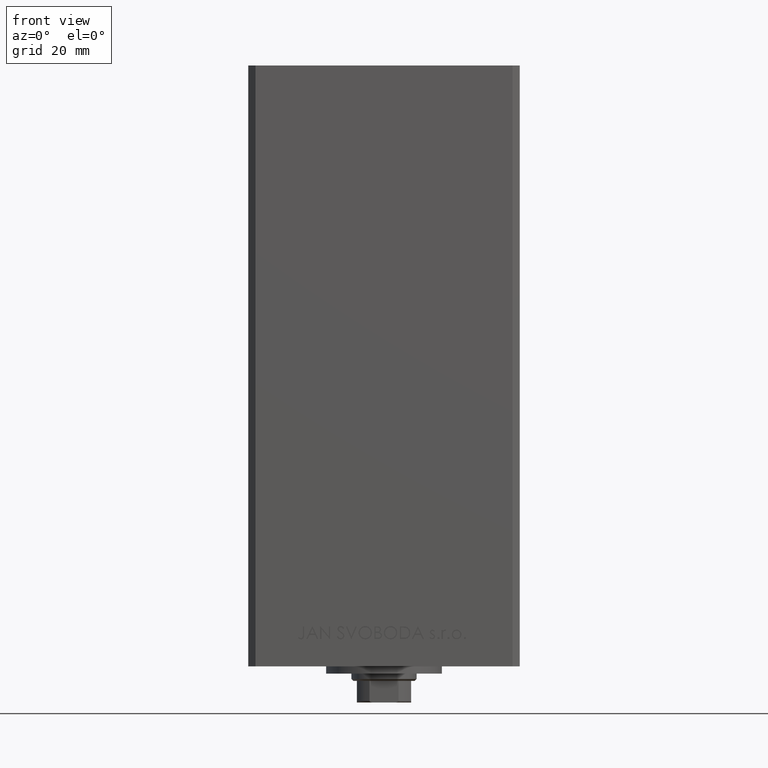
[diagram: clean part render]
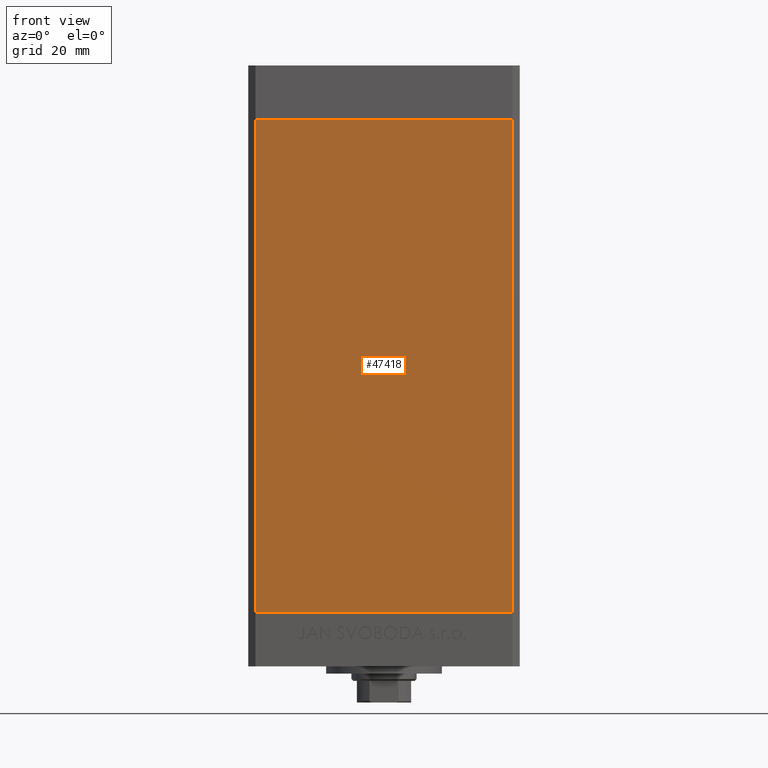
[diagram: same view with one face highlighted and labeled with its STEP entity id]
A machine part, front view. The second image highlights one B-rep face of the part: STEP entity #47418.
In plain terms, the highlighted planar face has unit normal (0, 1, 0).
Its self-contained STEP definition (entity closure, byte-faithful):
#481 = VERTEX_POINT ( 'NONE', #45219 ) ;
#1522 = EDGE_CURVE ( 'NONE', #22278, #9973, #34895, .T. ) ;
#2995 = VECTOR ( 'NONE', #31398, 1000.000000000000000 ) ;
#4451 = CARTESIAN_POINT ( 'NONE',  ( -35.49999999999999289, -32.50000000000000000, 136.0000000000000000 ) ) ;
#5362 = ORIENTED_EDGE ( 'NONE', *, *, #42387, .T. ) ;
#5832 = ORIENTED_EDGE ( 'NONE', *, *, #1522, .T. ) ;
#6244 = DIRECTION ( 'NONE',  ( -0.000000000000000000, -0.000000000000000000, -1.000000000000000000 ) ) ;
#8750 = CARTESIAN_POINT ( 'NONE',  ( -35.49999999999999289, -32.50000000000000000, 136.0000000000000000 ) ) ;
#9496 = CARTESIAN_POINT ( 'NONE',  ( 35.49999999999999289, -32.50000000000000000, 136.0000000000000000 ) ) ;
#9973 = VERTEX_POINT ( 'NONE', #17254 ) ;
#11839 = CARTESIAN_POINT ( 'NONE',  ( -35.49999999999999289, -32.50000000000000000, 0.000000000000000000 ) ) ;
#14940 = LINE ( 'NONE', #4451, #35216 ) ;
#16938 = CARTESIAN_POINT ( 'NONE',  ( -35.49999999999999289, -32.50000000000000000, 136.0000000000000000 ) ) ;
#17254 = CARTESIAN_POINT ( 'NONE',  ( 35.49999999999999289, -32.50000000000000000, 0.000000000000000000 ) ) ;
#17443 = DIRECTION ( 'NONE',  ( 1.000000000000000000, 0.000000000000000000, 0.000000000000000000 ) ) ;
#17677 = CARTESIAN_POINT ( 'NONE',  ( -35.49999999999999289, -32.50000000000000000, 136.0000000000000000 ) ) ;
#20438 = VECTOR ( 'NONE', #17443, 1000.000000000000000 ) ;
#20649 = VECTOR ( 'NONE', #6244, 1000.000000000000000 ) ;
#22278 = VERTEX_POINT ( 'NONE', #11839 ) ;
#24181 = LINE ( 'NONE', #16938, #20438 ) ;
#24988 = EDGE_CURVE ( 'NONE', #42193, #481, #24181, .T. ) ;
#27183 = ORIENTED_EDGE ( 'NONE', *, *, #24988, .F. ) ;
#30638 = AXIS2_PLACEMENT_3D ( 'NONE', #8750, #39396, #35658 ) ;
#30645 = EDGE_CURVE ( 'NONE', #481, #9973, #40143, .T. ) ;
#31398 = DIRECTION ( 'NONE',  ( 1.000000000000000000, 0.000000000000000000, 0.000000000000000000 ) ) ;
#34606 = DIRECTION ( 'NONE',  ( -0.000000000000000000, -0.000000000000000000, -1.000000000000000000 ) ) ;
#34895 = LINE ( 'NONE', #47101, #2995 ) ;
#35216 = VECTOR ( 'NONE', #34606, 1000.000000000000000 ) ;
#35658 = DIRECTION ( 'NONE',  ( 0.000000000000000000, -0.000000000000000000, 1.000000000000000000 ) ) ;
#37394 = EDGE_LOOP ( 'NONE', ( #5832, #44454, #27183, #5362 ) ) ;
#39396 = DIRECTION ( 'NONE',  ( 0.000000000000000000, 1.000000000000000000, 0.000000000000000000 ) ) ;
#40143 = LINE ( 'NONE', #9496, #20649 ) ;
#42193 = VERTEX_POINT ( 'NONE', #17677 ) ;
#42387 = EDGE_CURVE ( 'NONE', #42193, #22278, #14940, .T. ) ;
#42911 = PLANE ( 'NONE',  #30638 ) ;
#43149 = FACE_OUTER_BOUND ( 'NONE', #37394, .T. ) ;
#44454 = ORIENTED_EDGE ( 'NONE', *, *, #30645, .F. ) ;
#45219 = CARTESIAN_POINT ( 'NONE',  ( 35.49999999999999289, -32.50000000000000000, 136.0000000000000000 ) ) ;
#47101 = CARTESIAN_POINT ( 'NONE',  ( -35.49999999999999289, -32.50000000000000000, 0.000000000000000000 ) ) ;
#47418 = ADVANCED_FACE ( 'NONE', ( #43149 ), #42911, .F. ) ;